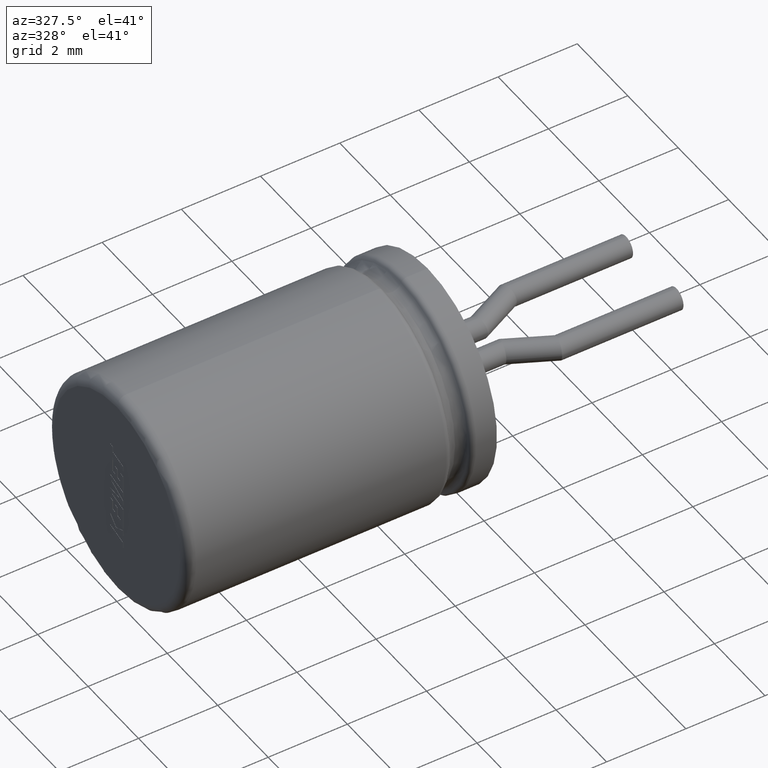
[diagram: clean part render]
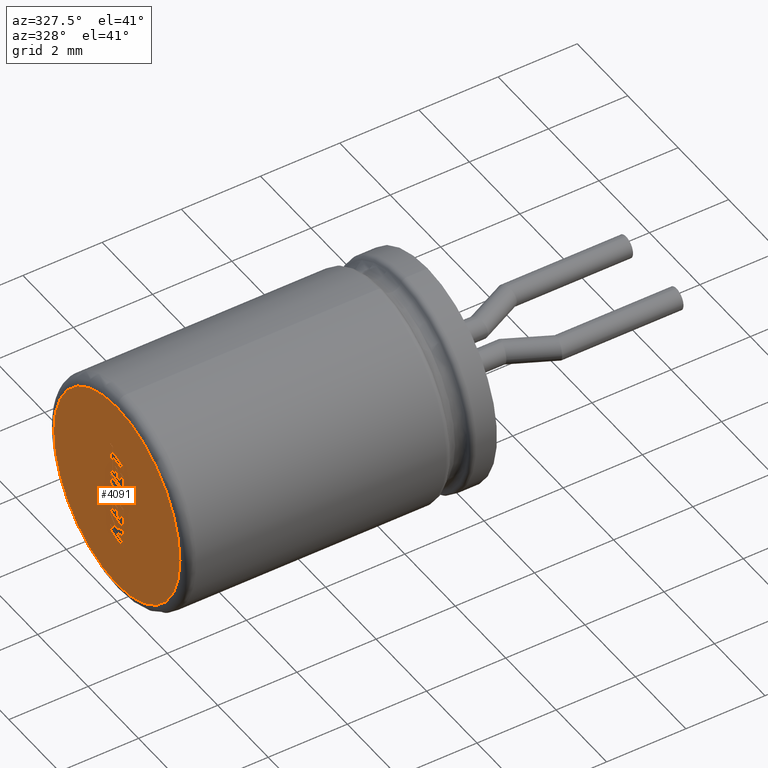
[diagram: same view with one face highlighted and labeled with its STEP entity id]
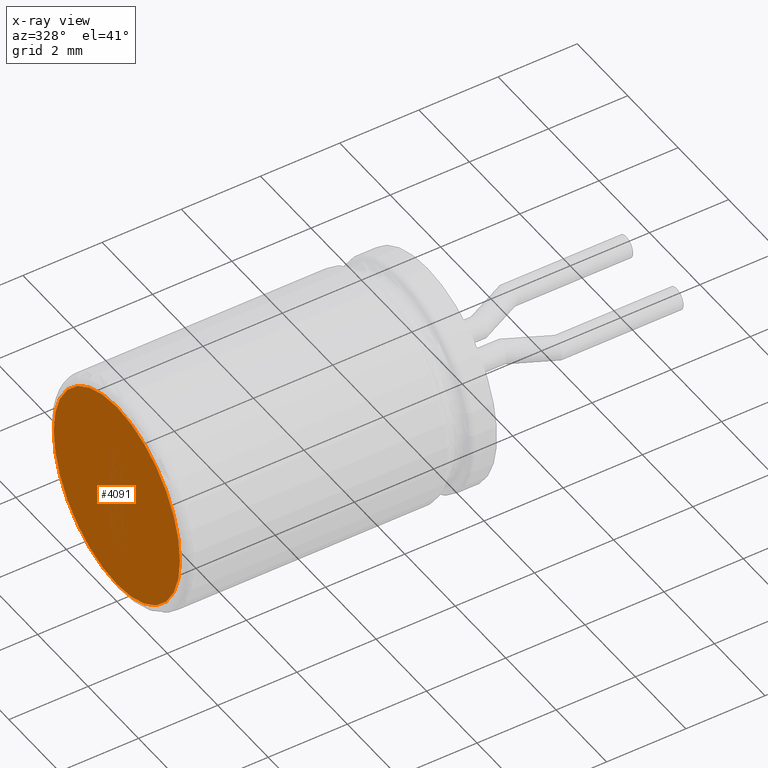
[diagram: x-ray of the same camera — body ghosted, the highlighted face saturated]
A machine part, auxiliary view. The second image highlights one B-rep face of the part: STEP entity #4091.
The next image is the same camera in x-ray: the body ghosted, the highlighted face saturated — about 0% of this face is hidden behind the body in this view.
In plain terms, the highlighted planar face has unit normal (1, 0, 0).
Its self-contained STEP definition (entity closure, byte-faithful):
#59 = ORIENTED_EDGE ( 'NONE', *, *, #3566, .T. ) ;
#109 = EDGE_LOOP ( 'NONE', ( #1552, #59 ) ) ;
#488 = DIRECTION ( 'NONE',  ( -1.000000000000000000, -0.0000000000000000000, -0.0000000000000000000 ) ) ;
#519 = DIRECTION ( 'NONE',  ( 0.0000000000000000000, 0.0000000000000000000, -1.000000000000000000 ) ) ;
#700 = CARTESIAN_POINT ( 'NONE',  ( 0.0000000000000000000, 3.214697847761801600E-016, 2.499999999999999600 ) ) ;
#737 = CARTESIAN_POINT ( 'NONE',  ( 0.0000000000000000000, 0.0000000000000000000, 0.0000000000000000000 ) ) ;
#765 = DIRECTION ( 'NONE',  ( 1.000000000000000000, 0.0000000000000000000, 0.0000000000000000000 ) ) ;
#1094 = DIRECTION ( 'NONE',  ( 0.0000000000000000000, 0.0000000000000000000, -1.000000000000000000 ) ) ;
#1222 = EDGE_CURVE ( 'NONE', #1578, #3449, #3008, .T. ) ;
#1357 = PLANE ( 'NONE',  #3099 ) ;
#1552 = ORIENTED_EDGE ( 'NONE', *, *, #1222, .T. ) ;
#1578 = VERTEX_POINT ( 'NONE', #2590 ) ;
#1728 = DIRECTION ( 'NONE',  ( -1.000000000000000000, -0.0000000000000000000, -0.0000000000000000000 ) ) ;
#1771 = FACE_OUTER_BOUND ( 'NONE', #109, .T. ) ;
#2242 = AXIS2_PLACEMENT_3D ( 'NONE', #3629, #1728, #1094 ) ;
#2320 = DIRECTION ( 'NONE',  ( 0.0000000000000000000, 0.0000000000000000000, -1.000000000000000000 ) ) ;
#2590 = CARTESIAN_POINT ( 'NONE',  ( 0.0000000000000000000, 0.0000000000000000000, -2.499999999999999600 ) ) ;
#2703 = AXIS2_PLACEMENT_3D ( 'NONE', #3992, #488, #519 ) ;
#3008 = CIRCLE ( 'NONE', #2703, 2.499999999999999600 ) ;
#3099 = AXIS2_PLACEMENT_3D ( 'NONE', #737, #765, #2320 ) ;
#3449 = VERTEX_POINT ( 'NONE', #700 ) ;
#3566 = EDGE_CURVE ( 'NONE', #3449, #1578, #3784, .T. ) ;
#3629 = CARTESIAN_POINT ( 'NONE',  ( 0.0000000000000000000, 0.0000000000000000000, 0.0000000000000000000 ) ) ;
#3784 = CIRCLE ( 'NONE', #2242, 2.499999999999999600 ) ;
#3992 = CARTESIAN_POINT ( 'NONE',  ( 0.0000000000000000000, 0.0000000000000000000, 0.0000000000000000000 ) ) ;
#4091 = ADVANCED_FACE ( 'NONE', ( #1771 ), #1357, .F. ) ;